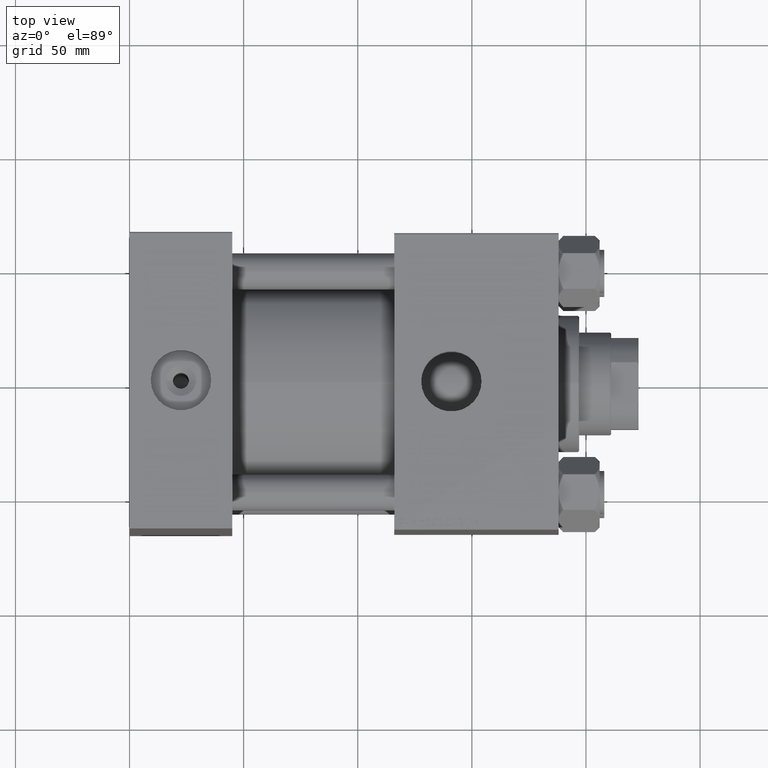
[diagram: clean part render]
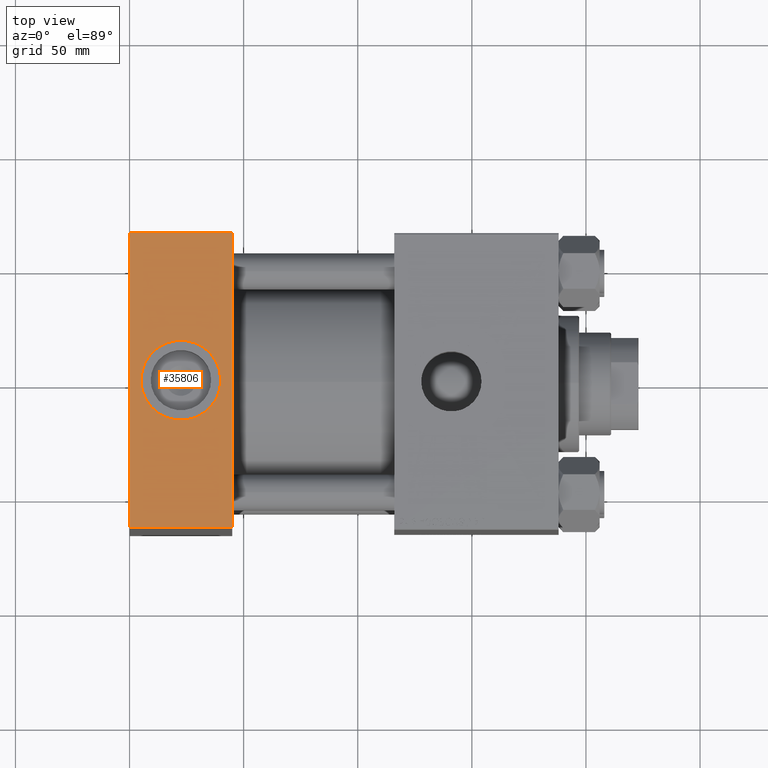
[diagram: same view with one face highlighted and labeled with its STEP entity id]
A machine part, top view. The second image highlights one B-rep face of the part: STEP entity #35806.
In plain terms, the highlighted planar face has unit normal (0, 0, -1).
Its self-contained STEP definition (entity closure, byte-faithful):
#910 = DIRECTION ( 'NONE',  ( 0.000000000000000000, -1.000000000000000000, -1.067522139062650425E-16 ) ) ;
#1286 = EDGE_LOOP ( 'NONE', ( #34016, #44952, #41158, #40753 ) ) ;
#3184 = DIRECTION ( 'NONE',  ( -1.000000000000000000, 0.000000000000000000, 0.000000000000000000 ) ) ;
#3689 = LINE ( 'NONE', #34567, #33872 ) ;
#5448 = CIRCLE ( 'NONE', #39648, 17.50000000000000000 ) ;
#5504 = LINE ( 'NONE', #21037, #30843 ) ;
#5832 = VERTEX_POINT ( 'NONE', #31341 ) ;
#6154 = DIRECTION ( 'NONE',  ( 0.000000000000000000, 0.000000000000000000, 1.000000000000000000 ) ) ;
#7726 = EDGE_CURVE ( 'NONE', #17595, #49430, #44421, .T. ) ;
#12378 = CARTESIAN_POINT ( 'NONE',  ( 45.00000000000000000, 65.00000000000002842, 94.99999999999997158 ) ) ;
#12411 = EDGE_LOOP ( 'NONE', ( #36593, #23232 ) ) ;
#12904 = CARTESIAN_POINT ( 'NONE',  ( 22.50000000000000000, -1.187618379707198315E-14, 94.99999999999995737 ) ) ;
#13055 = DIRECTION ( 'NONE',  ( 0.000000000000000000, -1.000000000000000000, -1.067522139062650425E-16 ) ) ;
#16696 = FACE_BOUND ( 'NONE', #12411, .T. ) ;
#17595 = VERTEX_POINT ( 'NONE', #42611 ) ;
#18312 = EDGE_CURVE ( 'NONE', #5832, #20898, #5448, .T. ) ;
#19971 = CARTESIAN_POINT ( 'NONE',  ( 0.000000000000000000, -64.49999999999994316, 94.99999999999995737 ) ) ;
#20226 = CARTESIAN_POINT ( 'NONE',  ( 45.00000000000000000, 64.50000000000000000, 94.99999999999997158 ) ) ;
#20538 = DIRECTION ( 'NONE',  ( 1.000000000000000000, 0.000000000000000000, 0.000000000000000000 ) ) ;
#20898 = VERTEX_POINT ( 'NONE', #30756 ) ;
#21037 = CARTESIAN_POINT ( 'NONE',  ( 45.00000000000000000, 65.00000000000002842, 94.99999999999997158 ) ) ;
#21695 = DIRECTION ( 'NONE',  ( 1.000000000000000000, 0.000000000000000000, 0.000000000000000000 ) ) ;
#23232 = ORIENTED_EDGE ( 'NONE', *, *, #18312, .F. ) ;
#23475 = DIRECTION ( 'NONE',  ( 1.000000000000000000, 0.000000000000000000, 0.000000000000000000 ) ) ;
#25277 = CARTESIAN_POINT ( 'NONE',  ( 22.50000000000000000, -1.187618379707198315E-14, 94.99999999999995737 ) ) ;
#26330 = VECTOR ( 'NONE', #13055, 1000.000000000000000 ) ;
#27172 = CARTESIAN_POINT ( 'NONE',  ( 45.00000000000000000, -64.49999999999994316, 94.99999999999995737 ) ) ;
#27907 = PLANE ( 'NONE',  #45165 ) ;
#28436 = DIRECTION ( 'NONE',  ( 0.000000000000000000, 0.000000000000000000, 1.000000000000000000 ) ) ;
#30239 = EDGE_CURVE ( 'NONE', #20898, #5832, #35192, .T. ) ;
#30756 = CARTESIAN_POINT ( 'NONE',  ( 40.00000000000000000, -1.187618379707198315E-14, 94.99999999999995737 ) ) ;
#30843 = VECTOR ( 'NONE', #910, 1000.000000000000000 ) ;
#31341 = CARTESIAN_POINT ( 'NONE',  ( 4.999999999999997335, -9.733051898564114899E-15, 94.99999999999995737 ) ) ;
#32005 = FACE_OUTER_BOUND ( 'NONE', #1286, .T. ) ;
#33872 = VECTOR ( 'NONE', #3184, 1000.000000000000000 ) ;
#34016 = ORIENTED_EDGE ( 'NONE', *, *, #7726, .T. ) ;
#34567 = CARTESIAN_POINT ( 'NONE',  ( 0.000000000000000000, 64.50000000000000000, 94.99999999999997158 ) ) ;
#34730 = LINE ( 'NONE', #35233, #34855 ) ;
#34855 = VECTOR ( 'NONE', #23475, 1000.000000000000000 ) ;
#35192 = CIRCLE ( 'NONE', #39267, 17.50000000000000000 ) ;
#35233 = CARTESIAN_POINT ( 'NONE',  ( 45.00000000000000000, -64.49999999999994316, 94.99999999999995737 ) ) ;
#35806 = ADVANCED_FACE ( 'NONE', ( #16696, #32005 ), #27907, .F. ) ;
#36593 = ORIENTED_EDGE ( 'NONE', *, *, #30239, .F. ) ;
#39267 = AXIS2_PLACEMENT_3D ( 'NONE', #12904, #28436, #20538 ) ;
#39648 = AXIS2_PLACEMENT_3D ( 'NONE', #25277, #6154, #21695 ) ;
#40753 = ORIENTED_EDGE ( 'NONE', *, *, #41423, .T. ) ;
#41158 = ORIENTED_EDGE ( 'NONE', *, *, #50064, .F. ) ;
#41423 = EDGE_CURVE ( 'NONE', #49537, #17595, #3689, .T. ) ;
#42611 = CARTESIAN_POINT ( 'NONE',  ( 0.000000000000000000, 64.50000000000000000, 94.99999999999997158 ) ) ;
#44421 = LINE ( 'NONE', #48742, #26330 ) ;
#44952 = ORIENTED_EDGE ( 'NONE', *, *, #47503, .T. ) ;
#45165 = AXIS2_PLACEMENT_3D ( 'NONE', #12378, #47069, #47570 ) ;
#47069 = DIRECTION ( 'NONE',  ( 0.000000000000000000, 1.067522139062650548E-16, -1.000000000000000000 ) ) ;
#47503 = EDGE_CURVE ( 'NONE', #49430, #49124, #34730, .T. ) ;
#47570 = DIRECTION ( 'NONE',  ( 0.000000000000000000, 1.000000000000000000, 1.067522139062650548E-16 ) ) ;
#48742 = CARTESIAN_POINT ( 'NONE',  ( 0.000000000000000000, 65.00000000000002842, 94.99999999999997158 ) ) ;
#49124 = VERTEX_POINT ( 'NONE', #27172 ) ;
#49430 = VERTEX_POINT ( 'NONE', #19971 ) ;
#49537 = VERTEX_POINT ( 'NONE', #20226 ) ;
#50064 = EDGE_CURVE ( 'NONE', #49537, #49124, #5504, .T. ) ;